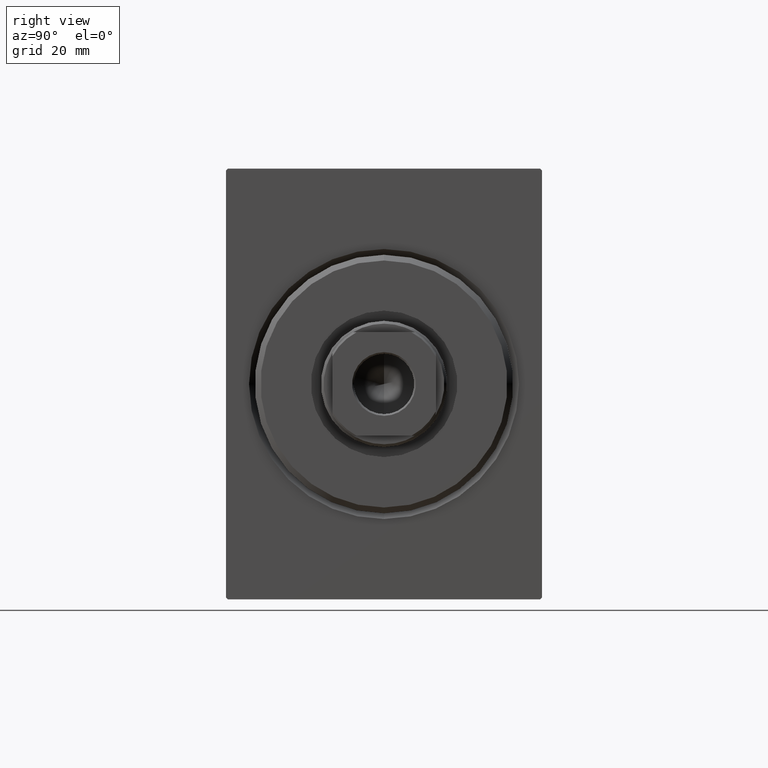
[diagram: clean part render]
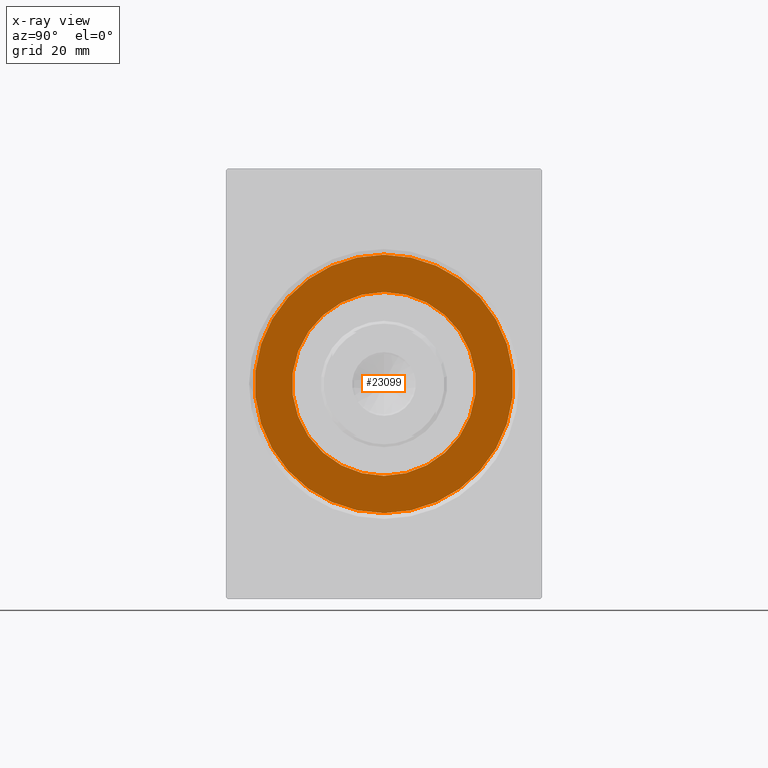
[diagram: x-ray — body ghosted, one internal face saturated and labeled with its STEP entity id]
A machine part, right view, then the same camera in x-ray: the body is ghosted and one INTERNAL B-rep face — a face not visible from any outside direction — is saturated and labeled: STEP entity #23099.
In plain terms, the highlighted planar face has unit normal (1, 0, -0).
Its self-contained STEP definition (entity closure, byte-faithful):
#551 = AXIS2_PLACEMENT_3D ( 'NONE', #41391, #31281, #21790 ) ;
#1843 = ORIENTED_EDGE ( 'NONE', *, *, #7724, .T. ) ;
#4936 = AXIS2_PLACEMENT_3D ( 'NONE', #7731, #10955, #10745 ) ;
#4964 = AXIS2_PLACEMENT_3D ( 'NONE', #23845, #17805, #30303 ) ;
#5008 = VERTEX_POINT ( 'NONE', #39852 ) ;
#7724 = EDGE_CURVE ( 'NONE', #9228, #5008, #12199, .T. ) ;
#7731 = CARTESIAN_POINT ( 'NONE',  ( 4.999999999999997335, 0.000000000000000000, 0.000000000000000000 ) ) ;
#8120 = EDGE_LOOP ( 'NONE', ( #28609, #1843 ) ) ;
#8559 = EDGE_CURVE ( 'NONE', #20669, #28991, #42397, .T. ) ;
#9228 = VERTEX_POINT ( 'NONE', #32165 ) ;
#9768 = CIRCLE ( 'NONE', #4964, 22.50000000000000355 ) ;
#10745 = DIRECTION ( 'NONE',  ( 0.000000000000000000, 0.000000000000000000, 1.000000000000000000 ) ) ;
#10955 = DIRECTION ( 'NONE',  ( -1.000000000000000000, 0.000000000000000000, 0.000000000000000000 ) ) ;
#12199 = CIRCLE ( 'NONE', #551, 22.50000000000000355 ) ;
#12743 = PLANE ( 'NONE',  #14509 ) ;
#13384 = DIRECTION ( 'NONE',  ( -1.000000000000000000, 0.000000000000000000, 0.000000000000000000 ) ) ;
#14509 = AXIS2_PLACEMENT_3D ( 'NONE', #35946, #13384, #29077 ) ;
#15090 = DIRECTION ( 'NONE',  ( 0.000000000000000000, 0.000000000000000000, 1.000000000000000000 ) ) ;
#15136 = ORIENTED_EDGE ( 'NONE', *, *, #23410, .F. ) ;
#17805 = DIRECTION ( 'NONE',  ( -1.000000000000000000, 0.000000000000000000, 0.000000000000000000 ) ) ;
#18254 = CARTESIAN_POINT ( 'NONE',  ( 4.999999999999997335, 0.000000000000000000, 16.00000000000000000 ) ) ;
#20669 = VERTEX_POINT ( 'NONE', #21598 ) ;
#21598 = CARTESIAN_POINT ( 'NONE',  ( 4.999999999999997335, 1.959434878635765131E-15, -16.00000000000000000 ) ) ;
#21790 = DIRECTION ( 'NONE',  ( 0.000000000000000000, 0.000000000000000000, 1.000000000000000000 ) ) ;
#22390 = FACE_BOUND ( 'NONE', #28261, .T. ) ;
#22605 = FACE_OUTER_BOUND ( 'NONE', #8120, .T. ) ;
#23099 = ADVANCED_FACE ( 'NONE', ( #22390, #22605 ), #12743, .T. ) ;
#23410 = EDGE_CURVE ( 'NONE', #28991, #20669, #28930, .T. ) ;
#23845 = CARTESIAN_POINT ( 'NONE',  ( 5.000000000000000000, 0.000000000000000000, 0.000000000000000000 ) ) ;
#24234 = EDGE_CURVE ( 'NONE', #5008, #9228, #9768, .T. ) ;
#24970 = CARTESIAN_POINT ( 'NONE',  ( 4.999999999999997335, 0.000000000000000000, 0.000000000000000000 ) ) ;
#27293 = AXIS2_PLACEMENT_3D ( 'NONE', #24970, #31006, #15090 ) ;
#28261 = EDGE_LOOP ( 'NONE', ( #15136, #39915 ) ) ;
#28609 = ORIENTED_EDGE ( 'NONE', *, *, #24234, .T. ) ;
#28930 = CIRCLE ( 'NONE', #4936, 16.00000000000000000 ) ;
#28991 = VERTEX_POINT ( 'NONE', #18254 ) ;
#29077 = DIRECTION ( 'NONE',  ( 0.000000000000000000, 0.000000000000000000, 1.000000000000000000 ) ) ;
#30303 = DIRECTION ( 'NONE',  ( 0.000000000000000000, 0.000000000000000000, 1.000000000000000000 ) ) ;
#31006 = DIRECTION ( 'NONE',  ( -1.000000000000000000, 0.000000000000000000, 0.000000000000000000 ) ) ;
#31281 = DIRECTION ( 'NONE',  ( -1.000000000000000000, 0.000000000000000000, 0.000000000000000000 ) ) ;
#32165 = CARTESIAN_POINT ( 'NONE',  ( 5.000000000000000000, 2.755455298081545172E-15, -22.50000000000000355 ) ) ;
#35946 = CARTESIAN_POINT ( 'NONE',  ( 5.000000000000000000, 0.000000000000000000, 0.000000000000000000 ) ) ;
#39852 = CARTESIAN_POINT ( 'NONE',  ( 5.000000000000000000, 0.000000000000000000, 22.50000000000000355 ) ) ;
#39915 = ORIENTED_EDGE ( 'NONE', *, *, #8559, .F. ) ;
#41391 = CARTESIAN_POINT ( 'NONE',  ( 5.000000000000000000, 0.000000000000000000, 0.000000000000000000 ) ) ;
#42397 = CIRCLE ( 'NONE', #27293, 16.00000000000000000 ) ;